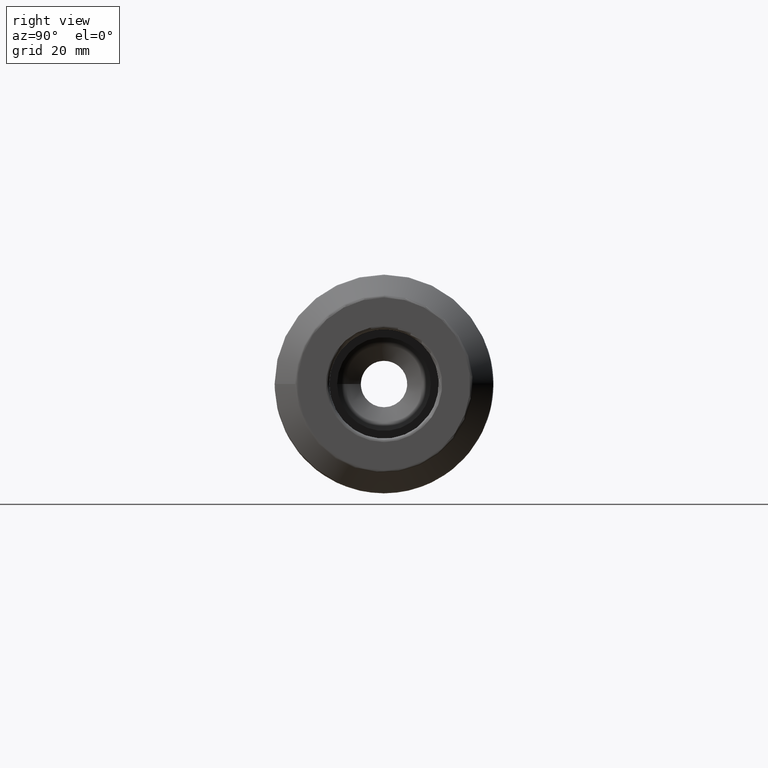
[diagram: clean part render]
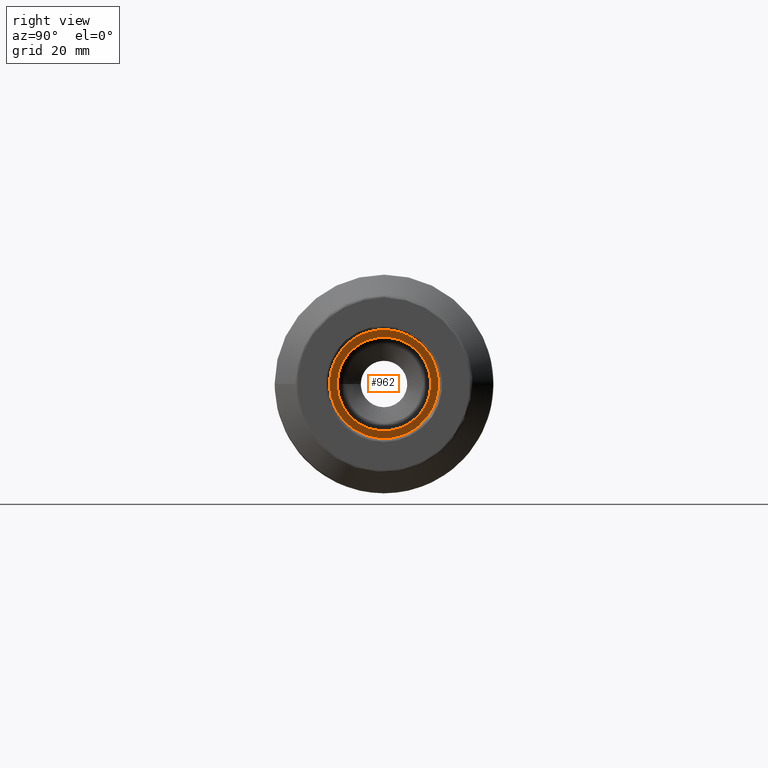
[diagram: same view with one face highlighted and labeled with its STEP entity id]
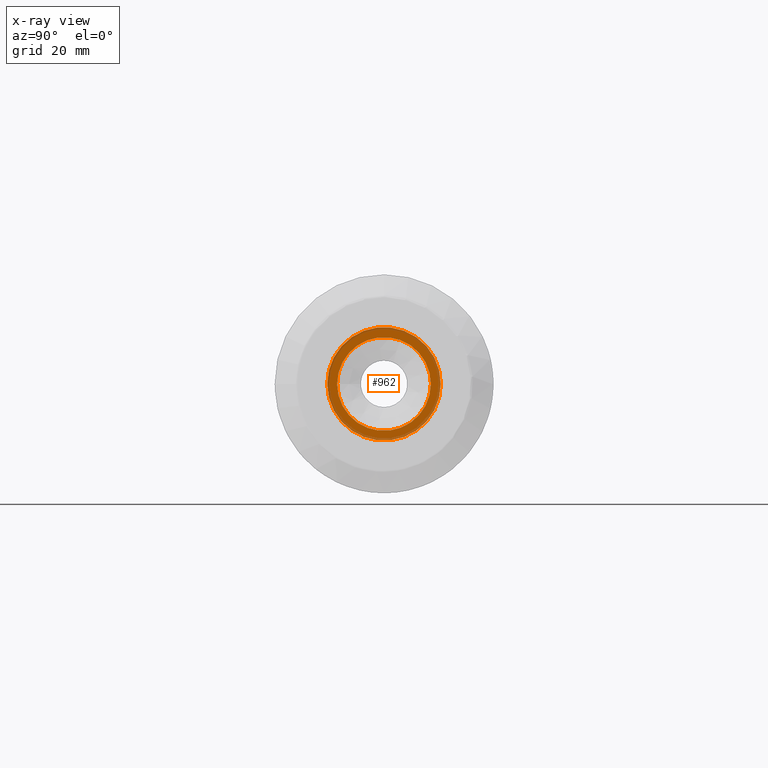
[diagram: x-ray of the same camera — body ghosted, the highlighted face saturated]
A machine part, right view. The second image highlights one B-rep face of the part: STEP entity #962.
The next image is the same camera in x-ray: the body ghosted, the highlighted face saturated — about 23% of this face is hidden behind the body in this view.
In plain terms, the highlighted planar face has unit normal (-1, 0, 0).
Its self-contained STEP definition (entity closure, byte-faithful):
#177=FACE_BOUND('',#277,.T.);
#183=PLANE('',#1068);
#213=FACE_OUTER_BOUND('',#276,.T.);
#276=EDGE_LOOP('',(#723));
#277=EDGE_LOOP('',(#724));
#351=CIRCLE('',#1069,16.475);
#352=CIRCLE('',#1070,13.6089211979727);
#428=VERTEX_POINT('',#2041);
#429=VERTEX_POINT('',#2043);
#538=EDGE_CURVE('',#428,#428,#351,.T.);
#539=EDGE_CURVE('',#429,#429,#352,.T.);
#723=ORIENTED_EDGE('',*,*,#538,.F.);
#724=ORIENTED_EDGE('',*,*,#539,.T.);
#962=ADVANCED_FACE('',(#213,#177),#183,.F.);
#1068=AXIS2_PLACEMENT_3D('',#2040,#1246,#1247);
#1069=AXIS2_PLACEMENT_3D('',#2042,#1248,#1249);
#1070=AXIS2_PLACEMENT_3D('',#2044,#1250,#1251);
#1246=DIRECTION('center_axis',(-1.,0.,0.));
#1247=DIRECTION('ref_axis',(0.,0.,1.));
#1248=DIRECTION('center_axis',(-1.,0.,0.));
#1249=DIRECTION('ref_axis',(0.,0.,1.));
#1250=DIRECTION('center_axis',(-1.,0.,0.));
#1251=DIRECTION('ref_axis',(0.,0.,1.));
#2040=CARTESIAN_POINT('Origin',(25.4,13.6089211979727,0.));
#2041=CARTESIAN_POINT('',(25.4,-16.475,-2.01760560159527E-15));
#2042=CARTESIAN_POINT('Origin',(25.4,0.,0.));
#2043=CARTESIAN_POINT('',(25.4,-13.6089211979727,1.66661217849459E-15));
#2044=CARTESIAN_POINT('Origin',(25.4,0.,0.));